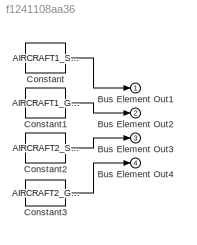
MODEL slx_f1241108aa36
KIND model
CONFIG AbsTol = auto
CONFIG EnableMultiTasking = off
CONFIG FixedStep = 0.1
CONFIG MaxStep = auto
CONFIG MinStep = auto
CONFIG RelTol = 1e-3
CONFIG SampleTimeConstraint = Unconstrained
CONFIG SolverName = FixedStepDiscrete
CONFIG StartTime = 0.0
CONFIG StopTime = 10.0
BLOCK [Outport] Bus Element Out1
BLOCK [Outport] Bus Element Out2
  Port = 2
BLOCK [Outport] Bus Element Out3
  Port = 3
BLOCK [Outport] Bus Element Out4
  Port = 4
BLOCK [Constant] Constant
  Value = AIRCRAFT1_START
BLOCK [Constant] Constant1
  Value = AIRCRAFT1_GOAL
BLOCK [Constant] Constant2
  Value = AIRCRAFT2_START
BLOCK [Constant] Constant3
  Value = AIRCRAFT2_GOAL
LINE Constant1:1 -> Bus Element Out2:1
LINE Constant2:1 -> Bus Element Out3:1
LINE Constant3:1 -> Bus Element Out4:1
LINE Constant:1 -> Bus Element Out1:1
